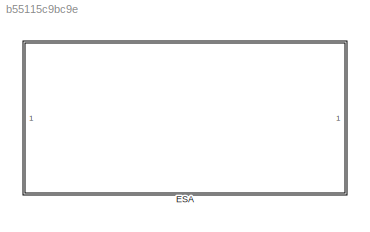
MODEL slx_b55115c9bc9e
KIND library
CONFIG AbsTol = auto
CONFIG EnableMultiTasking = off
CONFIG FixedStep = auto
CONFIG MaxStep = auto
CONFIG MinStep = auto
CONFIG RelTol = 1e-3
CONFIG SampleTimeConstraint = Unconstrained
CONFIG SolverName = VariableStepAuto
CONFIG StartTime = 0.0
CONFIG StopTime = 10.0
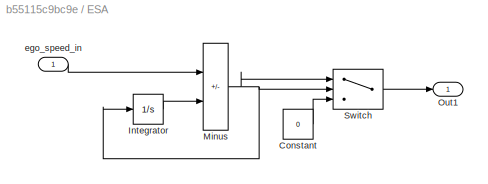
BLOCK [SubSystem] ESA
BLOCK [Constant] ESA/Constant
  Value = 0
BLOCK [Integrator] ESA/Integrator
BLOCK [Sum] ESA/Minus
  IconShape = rectangular
  Inputs = +-
BLOCK [Outport] ESA/Out1
BLOCK [Switch] ESA/Switch
  Criteria = u2 > Threshold
  InputSameDT = off
  SaturateOnIntegerOverflow = off
  Threshold = 1
BLOCK [Inport] ESA/ego_speed_in
LINE ESA/Constant:1 -> ESA/Switch:3
LINE ESA/Integrator:1 -> ESA/Minus:2
NET ESA/Minus:1 -> ESA/Integrator:1, ESA/Switch:1, ESA/Switch:2
LINE ESA/Switch:1 -> ESA/Out1:1
LINE ESA/ego_speed_in:1 -> ESA/Minus:1
note: NET lines group one-source signal fan-out (src -> all destinations, sorted); 1:1 wires keep LINE
